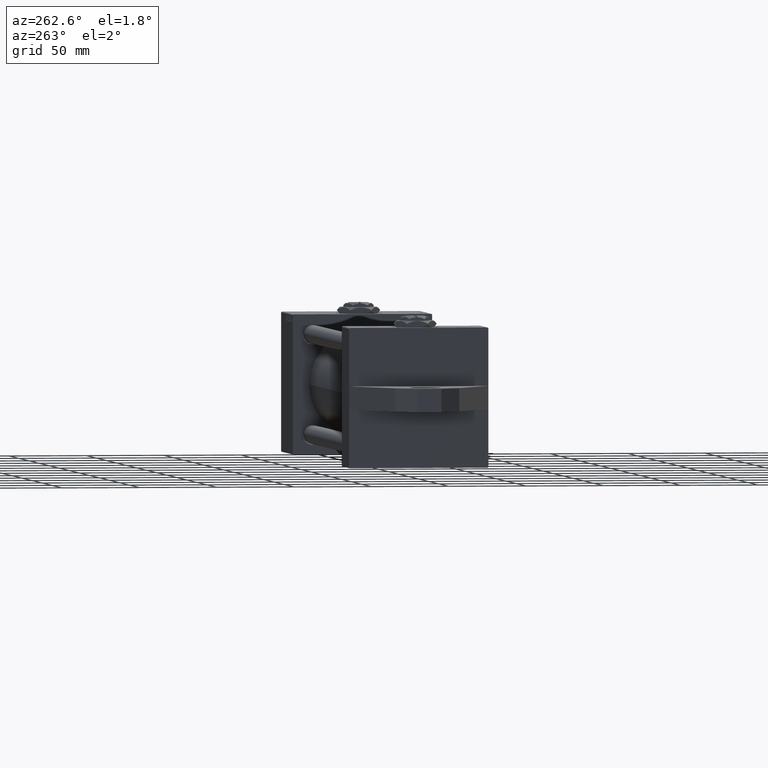
[diagram: clean part render]
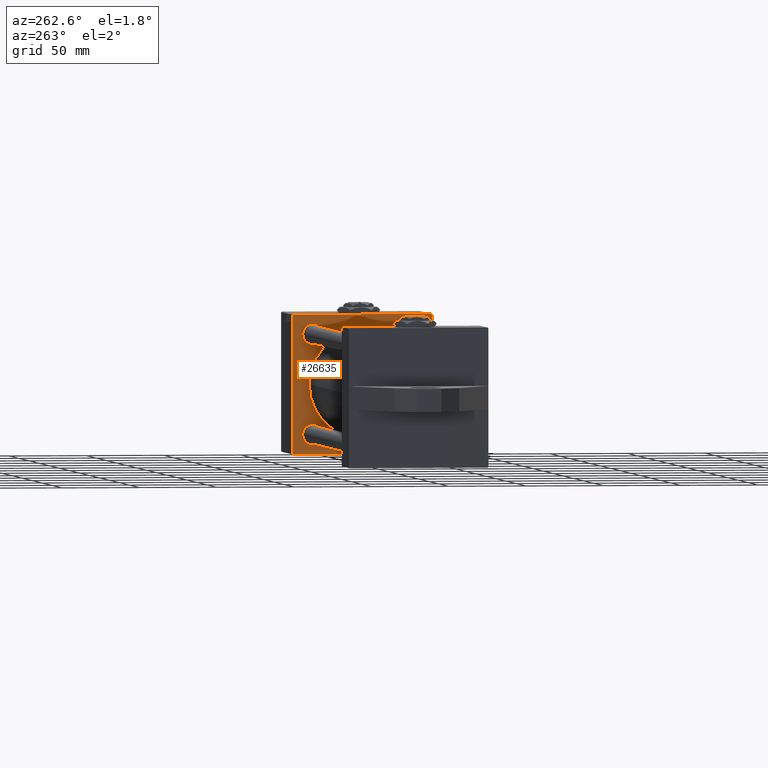
[diagram: same view with one face highlighted and labeled with its STEP entity id]
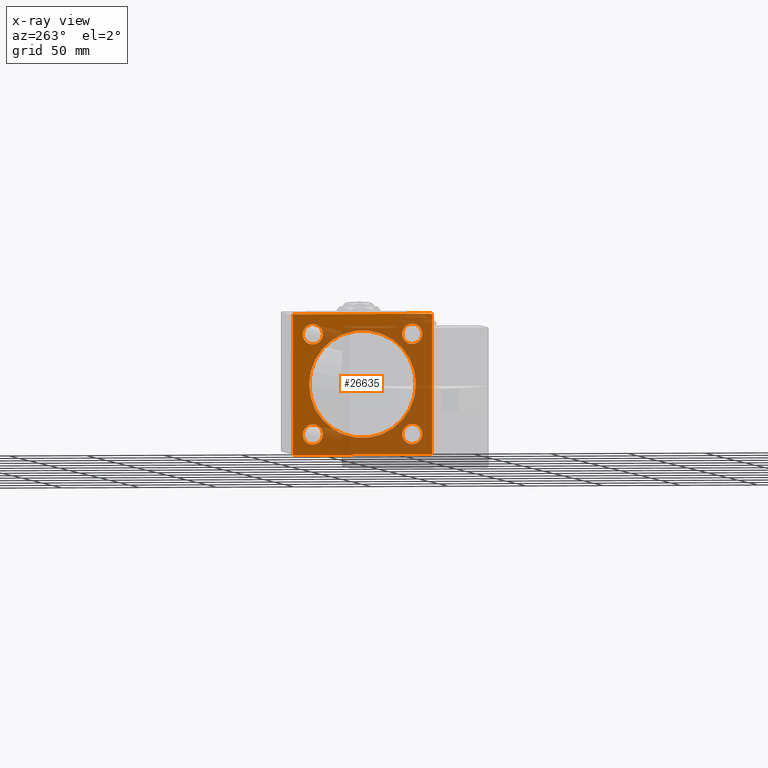
[diagram: x-ray of the same camera — body ghosted, the highlighted face saturated]
A machine part, auxiliary view. The second image highlights one B-rep face of the part: STEP entity #26635.
The next image is the same camera in x-ray: the body ghosted, the highlighted face saturated — about 57% of this face is hidden behind the body in this view.
In plain terms, the highlighted planar face has unit normal (-1, -0, 0).
Its self-contained STEP definition (entity closure, byte-faithful):
#628 = CARTESIAN_POINT ( 'NONE',  ( 279.9999999999999432, -45.00000000000000000, 44.50000000000004263 ) ) ;
#1206 = EDGE_CURVE ( 'NONE', #27251, #42707, #31704, .T. ) ;
#1210 = EDGE_CURVE ( 'NONE', #3455, #1545, #19152, .T. ) ;
#1545 = VERTEX_POINT ( 'NONE', #19994 ) ;
#1562 = CARTESIAN_POINT ( 'NONE',  ( 279.9999999999999432, 44.75000000000000000, -44.75000000000000000 ) ) ;
#1832 = FACE_OUTER_BOUND ( 'NONE', #37409, .T. ) ;
#2821 = ORIENTED_EDGE ( 'NONE', *, *, #18710, .T. ) ;
#3026 = DIRECTION ( 'NONE',  ( 0.000000000000000000, 0.000000000000000000, 1.000000000000000000 ) ) ;
#3231 = DIRECTION ( 'NONE',  ( 1.000000000000000000, 0.000000000000000000, 0.000000000000000000 ) ) ;
#3455 = VERTEX_POINT ( 'NONE', #7004 ) ;
#3616 = VERTEX_POINT ( 'NONE', #19282 ) ;
#3831 = EDGE_CURVE ( 'NONE', #16944, #10026, #22360, .T. ) ;
#4009 = LINE ( 'NONE', #4731, #22426 ) ;
#4075 = LINE ( 'NONE', #19060, #21402 ) ;
#4230 = VERTEX_POINT ( 'NONE', #24975 ) ;
#4731 = CARTESIAN_POINT ( 'NONE',  ( 279.9999999999999432, -44.74999999999968736, -44.75000000000031264 ) ) ;
#4798 = FACE_BOUND ( 'NONE', #7909, .T. ) ;
#4944 = AXIS2_PLACEMENT_3D ( 'NONE', #25760, #31765, #40746 ) ;
#5268 = DIRECTION ( 'NONE',  ( 1.000000000000000000, 0.000000000000000000, 0.000000000000000000 ) ) ;
#5529 = FACE_BOUND ( 'NONE', #45863, .T. ) ;
#5565 = VERTEX_POINT ( 'NONE', #21960 ) ;
#5605 = EDGE_CURVE ( 'NONE', #6889, #39418, #4009, .T. ) ;
#5911 = LINE ( 'NONE', #27546, #31101 ) ;
#6140 = DIRECTION ( 'NONE',  ( 0.000000000000000000, -1.000000000000000000, -1.541976423090495140E-16 ) ) ;
#6248 = CIRCLE ( 'NONE', #12518, 34.50000000000000000 ) ;
#6260 = DIRECTION ( 'NONE',  ( 0.000000000000000000, -1.000000000000000000, 0.000000000000000000 ) ) ;
#6840 = CIRCLE ( 'NONE', #34342, 6.499999999999895195 ) ;
#6889 = VERTEX_POINT ( 'NONE', #8532 ) ;
#7004 = CARTESIAN_POINT ( 'NONE',  ( 279.9999999999999432, 32.14999999999999147, -38.64999999999989200 ) ) ;
#7591 = ORIENTED_EDGE ( 'NONE', *, *, #1210, .T. ) ;
#7685 = ORIENTED_EDGE ( 'NONE', *, *, #19309, .T. ) ;
#7718 = VECTOR ( 'NONE', #6260, 1000.000000000000000 ) ;
#7909 = EDGE_LOOP ( 'NONE', ( #2821, #42975 ) ) ;
#8195 = VECTOR ( 'NONE', #41038, 1000.000000000000114 ) ;
#8272 = EDGE_LOOP ( 'NONE', ( #16606, #47531 ) ) ;
#8532 = CARTESIAN_POINT ( 'NONE',  ( 279.9999999999999432, -44.49999999999995737, -45.00000000000000000 ) ) ;
#8540 = VERTEX_POINT ( 'NONE', #16696 ) ;
#8721 = DIRECTION ( 'NONE',  ( -0.000000000000000000, 0.000000000000000000, 1.000000000000000000 ) ) ;
#9079 = DIRECTION ( 'NONE',  ( 0.000000000000000000, 0.000000000000000000, 1.000000000000000000 ) ) ;
#9205 = FACE_BOUND ( 'NONE', #8272, .T. ) ;
#9449 = CARTESIAN_POINT ( 'NONE',  ( 279.9999999999999432, 0.000000000000000000, 0.000000000000000000 ) ) ;
#9820 = EDGE_CURVE ( 'NONE', #10026, #16944, #6840, .T. ) ;
#9945 = CARTESIAN_POINT ( 'NONE',  ( 279.9999999999999432, 45.00000000000001421, -45.00000000000000000 ) ) ;
#10026 = VERTEX_POINT ( 'NONE', #34378 ) ;
#10152 = CARTESIAN_POINT ( 'NONE',  ( 279.9999999999999432, -32.14999999999999147, 38.64999999999994174 ) ) ;
#10293 = CARTESIAN_POINT ( 'NONE',  ( 279.9999999999999432, -2.602085213965210642E-15, 34.50000000000000000 ) ) ;
#10388 = CIRCLE ( 'NONE', #19796, 6.499999999999888090 ) ;
#10389 = DIRECTION ( 'NONE',  ( 1.000000000000000000, 0.000000000000000000, 0.000000000000000000 ) ) ;
#10603 = CARTESIAN_POINT ( 'NONE',  ( 279.9999999999999432, 45.00000000000001421, 44.49999999999994316 ) ) ;
#11206 = EDGE_LOOP ( 'NONE', ( #35546, #7685 ) ) ;
#11595 = EDGE_CURVE ( 'NONE', #18660, #6889, #32579, .T. ) ;
#12399 = ORIENTED_EDGE ( 'NONE', *, *, #1206, .T. ) ;
#12417 = DIRECTION ( 'NONE',  ( 1.000000000000000000, 0.000000000000000000, 0.000000000000000000 ) ) ;
#12518 = AXIS2_PLACEMENT_3D ( 'NONE', #16098, #12417, #35040 ) ;
#12551 = CIRCLE ( 'NONE', #36910, 34.50000000000000000 ) ;
#12999 = CARTESIAN_POINT ( 'NONE',  ( 279.9999999999999432, 32.14999999999999147, -32.15000000000000568 ) ) ;
#13873 = ORIENTED_EDGE ( 'NONE', *, *, #5605, .T. ) ;
#14200 = CIRCLE ( 'NONE', #26774, 6.499999999999950262 ) ;
#14539 = ORIENTED_EDGE ( 'NONE', *, *, #30649, .T. ) ;
#15843 = PLANE ( 'NONE',  #34809 ) ;
#16098 = CARTESIAN_POINT ( 'NONE',  ( 279.9999999999999432, -2.602085213965210642E-15, 0.000000000000000000 ) ) ;
#16479 = DIRECTION ( 'NONE',  ( 0.000000000000000000, 0.7071067811865474617, -0.7071067811865474617 ) ) ;
#16606 = ORIENTED_EDGE ( 'NONE', *, *, #3831, .T. ) ;
#16696 = CARTESIAN_POINT ( 'NONE',  ( 279.9999999999999432, 44.49999999999995737, 45.00000000000000000 ) ) ;
#16944 = VERTEX_POINT ( 'NONE', #43088 ) ;
#17509 = AXIS2_PLACEMENT_3D ( 'NONE', #20740, #5268, #27394 ) ;
#18075 = AXIS2_PLACEMENT_3D ( 'NONE', #40586, #3231, #18217 ) ;
#18217 = DIRECTION ( 'NONE',  ( 0.000000000000000000, 0.000000000000000000, 1.000000000000000000 ) ) ;
#18660 = VERTEX_POINT ( 'NONE', #36543 ) ;
#18682 = CARTESIAN_POINT ( 'NONE',  ( 279.9999999999999432, -44.75000000000001421, 44.75000000000001421 ) ) ;
#18710 = EDGE_CURVE ( 'NONE', #38655, #3616, #6248, .T. ) ;
#19060 = CARTESIAN_POINT ( 'NONE',  ( 279.9999999999999432, -45.00000000000000000, 44.99999999999998579 ) ) ;
#19152 = CIRCLE ( 'NONE', #28592, 6.499999999999888090 ) ;
#19282 = CARTESIAN_POINT ( 'NONE',  ( 279.9999999999999432, 1.622946243093158675E-15, -34.50000000000000000 ) ) ;
#19309 = EDGE_CURVE ( 'NONE', #5565, #34850, #32998, .T. ) ;
#19487 = CARTESIAN_POINT ( 'NONE',  ( 279.9999999999999432, 32.14999999999999147, 32.15000000000000568 ) ) ;
#19592 = EDGE_CURVE ( 'NONE', #3616, #38655, #12551, .T. ) ;
#19796 = AXIS2_PLACEMENT_3D ( 'NONE', #45403, #45886, #40979 ) ;
#19994 = CARTESIAN_POINT ( 'NONE',  ( 279.9999999999999432, 32.14999999999999147, -25.65000000000011582 ) ) ;
#20238 = DIRECTION ( 'NONE',  ( -0.000000000000000000, -0.7071067811865474617, -0.7071067811865474617 ) ) ;
#20478 = LINE ( 'NONE', #1562, #46826 ) ;
#20740 = CARTESIAN_POINT ( 'NONE',  ( 279.9999999999999432, 32.14999999999999147, 32.15000000000000568 ) ) ;
#20762 = FACE_BOUND ( 'NONE', #11206, .T. ) ;
#21402 = VECTOR ( 'NONE', #34068, 1000.000000000000000 ) ;
#21431 = ORIENTED_EDGE ( 'NONE', *, *, #11595, .T. ) ;
#21703 = CARTESIAN_POINT ( 'NONE',  ( 279.9999999999999432, 32.14999999999999147, 25.65000000000005542 ) ) ;
#21960 = CARTESIAN_POINT ( 'NONE',  ( 279.9999999999999432, -32.14999999999999147, 25.65000000000004121 ) ) ;
#22360 = CIRCLE ( 'NONE', #38858, 6.499999999999895195 ) ;
#22426 = VECTOR ( 'NONE', #45770, 999.9999999999998863 ) ;
#23921 = ORIENTED_EDGE ( 'NONE', *, *, #25515, .T. ) ;
#24545 = VERTEX_POINT ( 'NONE', #21703 ) ;
#24975 = CARTESIAN_POINT ( 'NONE',  ( 279.9999999999999432, -44.50000000000002842, 44.99999999999998579 ) ) ;
#25148 = CARTESIAN_POINT ( 'NONE',  ( 279.9999999999999432, -32.15000000000001279, -32.15000000000000568 ) ) ;
#25515 = EDGE_CURVE ( 'NONE', #24545, #32552, #27711, .T. ) ;
#25760 = CARTESIAN_POINT ( 'NONE',  ( 279.9999999999999432, -32.14999999999999147, 32.14999999999999147 ) ) ;
#25866 = EDGE_LOOP ( 'NONE', ( #42140, #7591 ) ) ;
#26065 = EDGE_CURVE ( 'NONE', #34850, #5565, #43387, .T. ) ;
#26635 = ADVANCED_FACE ( 'NONE', ( #20762, #5529, #42393, #9205, #4798, #1832 ), #15843, .T. ) ;
#26774 = AXIS2_PLACEMENT_3D ( 'NONE', #19487, #38896, #42566 ) ;
#27251 = VERTEX_POINT ( 'NONE', #10603 ) ;
#27394 = DIRECTION ( 'NONE',  ( 0.000000000000000000, 0.000000000000000000, 1.000000000000000000 ) ) ;
#27546 = CARTESIAN_POINT ( 'NONE',  ( 279.9999999999999432, 44.74999999999997158, 44.74999999999997158 ) ) ;
#27711 = CIRCLE ( 'NONE', #17509, 6.499999999999950262 ) ;
#28592 = AXIS2_PLACEMENT_3D ( 'NONE', #12999, #34905, #9079 ) ;
#29853 = EDGE_CURVE ( 'NONE', #35315, #4230, #33686, .T. ) ;
#30649 = EDGE_CURVE ( 'NONE', #32552, #24545, #14200, .T. ) ;
#31101 = VECTOR ( 'NONE', #16479, 1000.000000000000114 ) ;
#31462 = DIRECTION ( 'NONE',  ( 1.000000000000000000, 0.000000000000000000, 0.000000000000000000 ) ) ;
#31590 = DIRECTION ( 'NONE',  ( -1.000000000000000000, 0.000000000000000000, -0.000000000000000000 ) ) ;
#31704 = LINE ( 'NONE', #46674, #43489 ) ;
#31765 = DIRECTION ( 'NONE',  ( 1.000000000000000000, 0.000000000000000000, 0.000000000000000000 ) ) ;
#32216 = LINE ( 'NONE', #46941, #32476 ) ;
#32476 = VECTOR ( 'NONE', #6140, 1000.000000000000000 ) ;
#32552 = VERTEX_POINT ( 'NONE', #33437 ) ;
#32579 = LINE ( 'NONE', #9945, #7718 ) ;
#32998 = CIRCLE ( 'NONE', #18075, 6.499999999999950262 ) ;
#33437 = CARTESIAN_POINT ( 'NONE',  ( 279.9999999999999432, 32.14999999999999147, 38.64999999999995595 ) ) ;
#33686 = LINE ( 'NONE', #18682, #8195 ) ;
#33799 = EDGE_CURVE ( 'NONE', #1545, #3455, #10388, .T. ) ;
#34068 = DIRECTION ( 'NONE',  ( 0.000000000000000000, 7.709882115452478166E-17, -1.000000000000000000 ) ) ;
#34342 = AXIS2_PLACEMENT_3D ( 'NONE', #35148, #31462, #46429 ) ;
#34378 = CARTESIAN_POINT ( 'NONE',  ( 279.9999999999999432, -32.15000000000001279, -38.64999999999989910 ) ) ;
#34809 = AXIS2_PLACEMENT_3D ( 'NONE', #9449, #31590, #8721 ) ;
#34850 = VERTEX_POINT ( 'NONE', #10152 ) ;
#34905 = DIRECTION ( 'NONE',  ( 1.000000000000000000, 0.000000000000000000, 0.000000000000000000 ) ) ;
#35040 = DIRECTION ( 'NONE',  ( 0.000000000000000000, 0.000000000000000000, -1.000000000000000000 ) ) ;
#35148 = CARTESIAN_POINT ( 'NONE',  ( 279.9999999999999432, -32.15000000000001279, -32.15000000000000568 ) ) ;
#35315 = VERTEX_POINT ( 'NONE', #628 ) ;
#35356 = EDGE_CURVE ( 'NONE', #35315, #39418, #4075, .T. ) ;
#35546 = ORIENTED_EDGE ( 'NONE', *, *, #26065, .T. ) ;
#36543 = CARTESIAN_POINT ( 'NONE',  ( 279.9999999999999432, 44.50000000000001421, -45.00000000000000000 ) ) ;
#36910 = AXIS2_PLACEMENT_3D ( 'NONE', #47173, #48135, #44207 ) ;
#37107 = EDGE_CURVE ( 'NONE', #8540, #4230, #32216, .T. ) ;
#37315 = CARTESIAN_POINT ( 'NONE',  ( 279.9999999999999432, -44.99999999999999289, -44.49999999999997158 ) ) ;
#37409 = EDGE_LOOP ( 'NONE', ( #21431, #13873, #48588, #43433, #47572, #44534, #12399, #38317 ) ) ;
#38317 = ORIENTED_EDGE ( 'NONE', *, *, #47440, .T. ) ;
#38655 = VERTEX_POINT ( 'NONE', #10293 ) ;
#38858 = AXIS2_PLACEMENT_3D ( 'NONE', #25148, #10389, #3026 ) ;
#38896 = DIRECTION ( 'NONE',  ( 1.000000000000000000, 0.000000000000000000, 0.000000000000000000 ) ) ;
#39418 = VERTEX_POINT ( 'NONE', #37315 ) ;
#39541 = CARTESIAN_POINT ( 'NONE',  ( 279.9999999999999432, 45.00000000000001421, -44.49999999999997158 ) ) ;
#40586 = CARTESIAN_POINT ( 'NONE',  ( 279.9999999999999432, -32.14999999999999147, 32.14999999999999147 ) ) ;
#40746 = DIRECTION ( 'NONE',  ( 0.000000000000000000, 0.000000000000000000, 1.000000000000000000 ) ) ;
#40979 = DIRECTION ( 'NONE',  ( 0.000000000000000000, 0.000000000000000000, 1.000000000000000000 ) ) ;
#41038 = DIRECTION ( 'NONE',  ( -0.000000000000000000, 0.7071067811865474617, 0.7071067811865474617 ) ) ;
#42140 = ORIENTED_EDGE ( 'NONE', *, *, #33799, .T. ) ;
#42393 = FACE_BOUND ( 'NONE', #25866, .T. ) ;
#42566 = DIRECTION ( 'NONE',  ( 0.000000000000000000, 0.000000000000000000, 1.000000000000000000 ) ) ;
#42707 = VERTEX_POINT ( 'NONE', #39541 ) ;
#42751 = DIRECTION ( 'NONE',  ( 0.000000000000000000, 0.000000000000000000, -1.000000000000000000 ) ) ;
#42975 = ORIENTED_EDGE ( 'NONE', *, *, #19592, .T. ) ;
#43088 = CARTESIAN_POINT ( 'NONE',  ( 279.9999999999999432, -32.15000000000001279, -25.65000000000010871 ) ) ;
#43387 = CIRCLE ( 'NONE', #4944, 6.499999999999950262 ) ;
#43433 = ORIENTED_EDGE ( 'NONE', *, *, #29853, .T. ) ;
#43489 = VECTOR ( 'NONE', #42751, 1000.000000000000000 ) ;
#44207 = DIRECTION ( 'NONE',  ( 0.000000000000000000, 0.000000000000000000, -1.000000000000000000 ) ) ;
#44534 = ORIENTED_EDGE ( 'NONE', *, *, #45050, .T. ) ;
#45050 = EDGE_CURVE ( 'NONE', #8540, #27251, #5911, .T. ) ;
#45403 = CARTESIAN_POINT ( 'NONE',  ( 279.9999999999999432, 32.14999999999999147, -32.15000000000000568 ) ) ;
#45770 = DIRECTION ( 'NONE',  ( 0.000000000000000000, -0.7071067811865525687, 0.7071067811865425767 ) ) ;
#45863 = EDGE_LOOP ( 'NONE', ( #14539, #23921 ) ) ;
#45886 = DIRECTION ( 'NONE',  ( 1.000000000000000000, 0.000000000000000000, 0.000000000000000000 ) ) ;
#46429 = DIRECTION ( 'NONE',  ( 0.000000000000000000, 0.000000000000000000, 1.000000000000000000 ) ) ;
#46674 = CARTESIAN_POINT ( 'NONE',  ( 279.9999999999999432, 45.00000000000001421, 45.00000000000000000 ) ) ;
#46826 = VECTOR ( 'NONE', #20238, 1000.000000000000114 ) ;
#46941 = CARTESIAN_POINT ( 'NONE',  ( 279.9999999999999432, 45.00000000000001421, 45.00000000000000000 ) ) ;
#47173 = CARTESIAN_POINT ( 'NONE',  ( 279.9999999999999432, -2.602085213965210642E-15, 0.000000000000000000 ) ) ;
#47440 = EDGE_CURVE ( 'NONE', #42707, #18660, #20478, .T. ) ;
#47531 = ORIENTED_EDGE ( 'NONE', *, *, #9820, .T. ) ;
#47572 = ORIENTED_EDGE ( 'NONE', *, *, #37107, .F. ) ;
#48135 = DIRECTION ( 'NONE',  ( 1.000000000000000000, 0.000000000000000000, 0.000000000000000000 ) ) ;
#48588 = ORIENTED_EDGE ( 'NONE', *, *, #35356, .F. ) ;